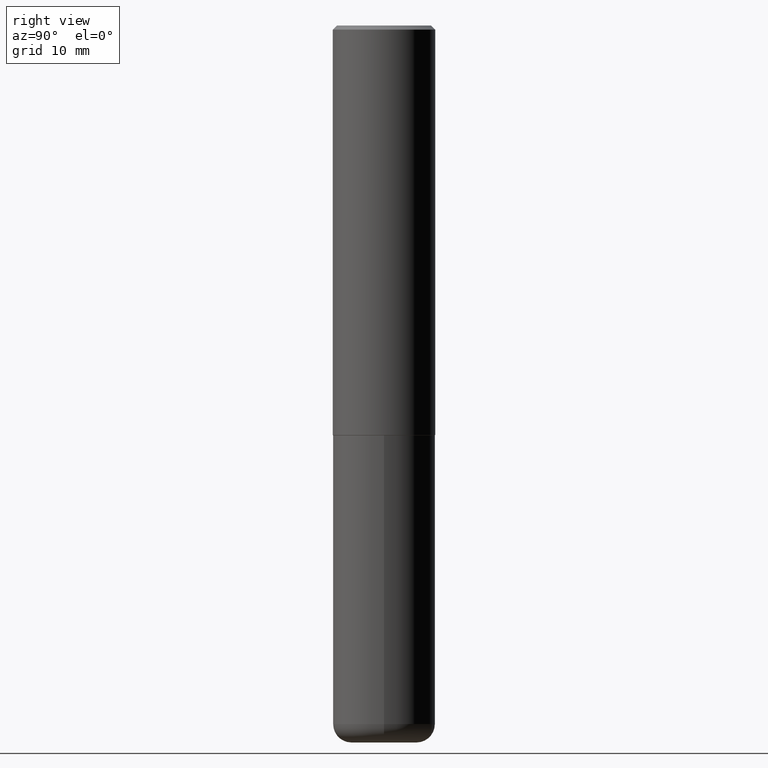
[diagram: clean part render]
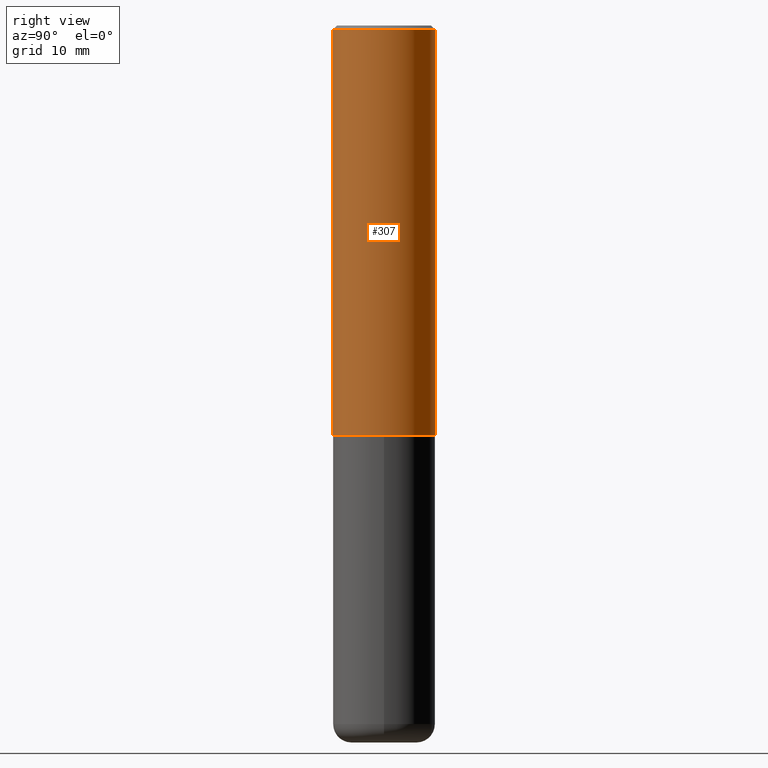
[diagram: same view with one face highlighted and labeled with its STEP entity id]
A machine part, right view. The second image highlights one B-rep face of the part: STEP entity #307.
In plain terms, the highlighted cylindrical surface (partial cylindrical patch) has radius 6.35 mm, axis along (-0, 0, 1).
Its self-contained STEP definition (entity closure, byte-faithful):
#43 = DIRECTION ( 'NONE',  ( -2.445737183286911680E-29, 3.491097007558327602E-15, 1.000000000000000000 ) ) ;
#60 = CARTESIAN_POINT ( 'NONE',  ( -1.715124499442882299E-15, -0.2500000000000000555, -0.01999999999999918510 ) ) ;
#73 = DIRECTION ( 'NONE',  ( -6.982962677686265922E-15, -1.000000000000000000, 3.278217592397112312E-15 ) ) ;
#84 = VERTEX_POINT ( 'NONE', #353 ) ;
#86 = VERTEX_POINT ( 'NONE', #60 ) ;
#93 = EDGE_CURVE ( 'NONE', #84, #413, #390, .T. ) ;
#94 = VERTEX_POINT ( 'NONE', #260 ) ;
#95 = CARTESIAN_POINT ( 'NONE',  ( 1.745740669421566875E-15, 0.2499999999999999167, -0.02000000000000092676 ) ) ;
#96 = ORIENTED_EDGE ( 'NONE', *, *, #93, .T. ) ;
#97 = CARTESIAN_POINT ( 'NONE',  ( 1.776356839400251254E-15, 0.2500000000000001110, -8.727742518895823935E-16 ) ) ;
#104 = DIRECTION ( 'NONE',  ( -2.445737183286911680E-29, 3.491097007558327602E-15, 1.000000000000000000 ) ) ;
#111 = EDGE_LOOP ( 'NONE', ( #150, #96, #379, #410 ) ) ;
#119 = DIRECTION ( 'NONE',  ( -6.982962677686266711E-15, -1.000000000000000000, 3.491097007558327996E-15 ) ) ;
#121 = CIRCLE ( 'NONE', #167, 0.2500000000000000000 ) ;
#132 = FACE_OUTER_BOUND ( 'NONE', #111, .T. ) ;
#138 = EDGE_CURVE ( 'NONE', #94, #84, #330, .T. ) ;
#150 = ORIENTED_EDGE ( 'NONE', *, *, #138, .T. ) ;
#165 = CARTESIAN_POINT ( 'NONE',  ( 4.889028629390535480E-29, -6.978702918109095527E-15, -1.998999999999999666 ) ) ;
#167 = AXIS2_PLACEMENT_3D ( 'NONE', #243, #403, #367 ) ;
#189 = DIRECTION ( 'NONE',  ( -2.445737183286911680E-29, 3.491097007558327602E-15, 1.000000000000000000 ) ) ;
#210 = AXIS2_PLACEMENT_3D ( 'NONE', #165, #43, #73 ) ;
#226 = EDGE_CURVE ( 'NONE', #94, #86, #408, .T. ) ;
#243 = CARTESIAN_POINT ( 'NONE',  ( 4.891474366573836672E-31, -6.982194015116674235E-17, -0.02000000000000005593 ) ) ;
#260 = CARTESIAN_POINT ( 'NONE',  ( -1.745740669421519543E-15, -0.2500000000000072164, -1.998999999999998778 ) ) ;
#263 = CARTESIAN_POINT ( 'NONE',  ( 0.000000000000000000, 0.000000000000000000, 0.000000000000000000 ) ) ;
#277 = VECTOR ( 'NONE', #189, 39.37007874015748143 ) ;
#299 = CYLINDRICAL_SURFACE ( 'NONE', #360, 0.2500000000000001110 ) ;
#300 = EDGE_CURVE ( 'NONE', #86, #413, #121, .T. ) ;
#307 = ADVANCED_FACE ( 'NONE', ( #132 ), #299, .T. ) ;
#330 = CIRCLE ( 'NONE', #210, 0.2500000000000002776 ) ;
#347 = VECTOR ( 'NONE', #412, 39.37007874015748143 ) ;
#348 = CARTESIAN_POINT ( 'NONE',  ( -1.745740669421567467E-15, -0.2500000000000001110, 8.727742518895823935E-16 ) ) ;
#353 = CARTESIAN_POINT ( 'NONE',  ( 1.776356839400276103E-15, 0.2499999999999933109, -1.999000000000000554 ) ) ;
#360 = AXIS2_PLACEMENT_3D ( 'NONE', #263, #104, #119 ) ;
#367 = DIRECTION ( 'NONE',  ( -6.982962677686265922E-15, -1.000000000000000000, 3.483106191921935554E-15 ) ) ;
#379 = ORIENTED_EDGE ( 'NONE', *, *, #300, .F. ) ;
#390 = LINE ( 'NONE', #97, #277 ) ;
#403 = DIRECTION ( 'NONE',  ( -2.445737183286911680E-29, 3.491097007558327602E-15, 1.000000000000000000 ) ) ;
#408 = LINE ( 'NONE', #348, #347 ) ;
#410 = ORIENTED_EDGE ( 'NONE', *, *, #226, .F. ) ;
#412 = DIRECTION ( 'NONE',  ( -2.445737183286911680E-29, 3.491097007558327602E-15, 1.000000000000000000 ) ) ;
#413 = VERTEX_POINT ( 'NONE', #95 ) ;